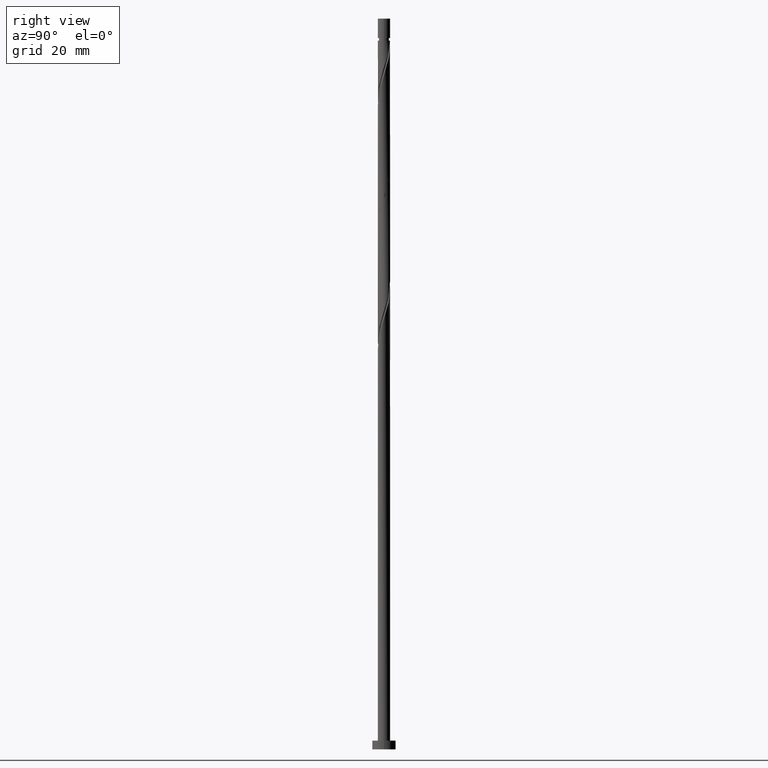
[diagram: clean part render]
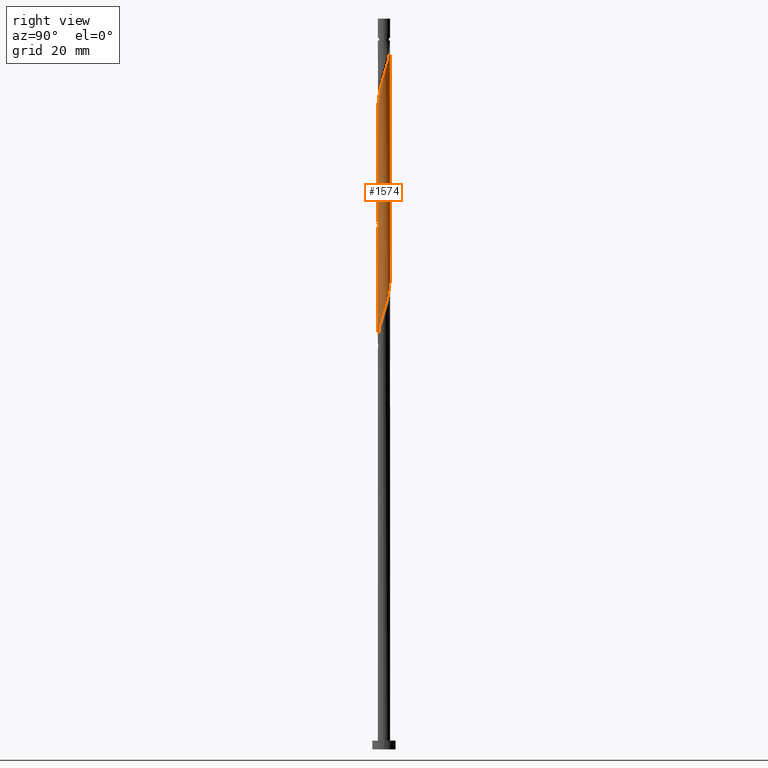
[diagram: same view with one face highlighted and labeled with its STEP entity id]
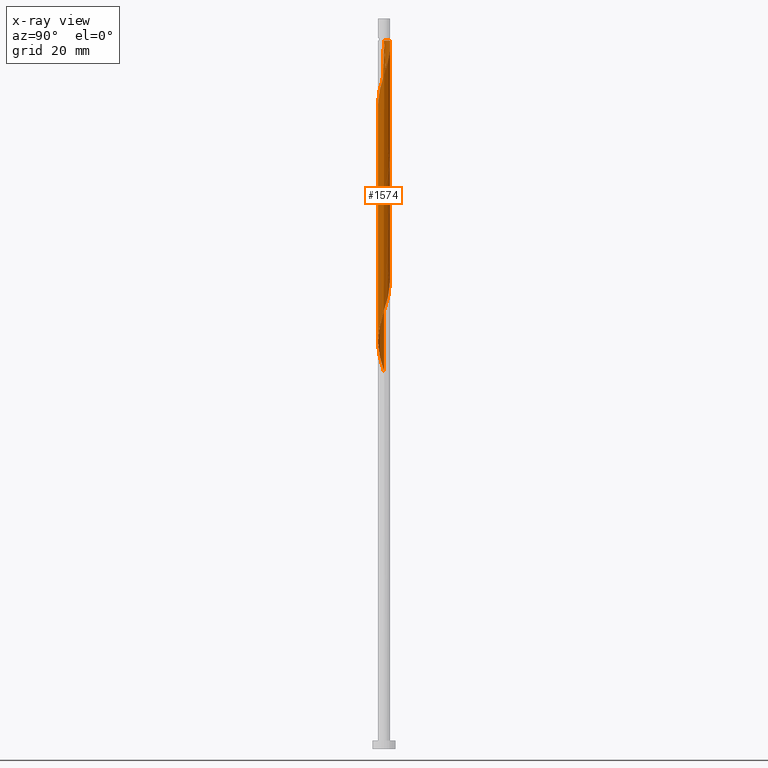
[diagram: x-ray of the same camera — body ghosted, the highlighted face saturated]
A machine part, right view. The second image highlights one B-rep face of the part: STEP entity #1574.
The next image is the same camera in x-ray: the body ghosted, the highlighted face saturated — about 0% of this face is hidden behind the body in this view.
In plain terms, the highlighted cylindrical surface (bore or boss wall) has radius 2.1 mm, axis along (-0, -0, -1).
Its self-contained STEP definition (entity closure, byte-faithful):
#2 = CARTESIAN_POINT ( 'NONE',  ( -2.100000000000000089, -0.1706385209277939408, 129.7641506767373016 ) ) ;
#4 = ORIENTED_EDGE ( 'NONE', *, *, #699, .T. ) ;
#22 = CARTESIAN_POINT ( 'NONE',  ( -2.099999999999982769, 0.000000000000000000, 242.4798613968304437 ) ) ;
#28 = CARTESIAN_POINT ( 'NONE',  ( 0.3415286315006276219, 2.087672421163765168, 240.0760152429842833 ) ) ;
#32 = CARTESIAN_POINT ( 'NONE',  ( 1.677505122866757459, 1.263319659767782044, 196.0055024224714941 ) ) ;
#39 = VECTOR ( 'NONE', #959, 1000.000000000000000 ) ;
#40 = CARTESIAN_POINT ( 'NONE',  ( 1.272598334446845447, 1.689825855934741883, 236.8708870378560789 ) ) ;
#43 = CARTESIAN_POINT ( 'NONE',  ( 0.8982630995139613272, 1.898189506885856526, 199.2106306275996985 ) ) ;
#47 = CARTESIAN_POINT ( 'NONE',  ( -2.100000000000003642, 2.392950165325814870E-16, 209.9019395209385834 ) ) ;
#54 = CARTESIAN_POINT ( 'NONE',  ( 2.100000000000000089, 2.452773919458978978E-15, 191.7244499393889896 ) ) ;
#59 = VERTEX_POINT ( 'NONE', #1179 ) ;
#72 = CARTESIAN_POINT ( 'NONE',  ( -1.051907738452355634, 1.817550579704468650, 163.9542203711893933 ) ) ;
#91 = CARTESIAN_POINT ( 'NONE',  ( 1.051907738452355190, -1.817550579704469094, 184.7875537045227929 ) ) ;
#98 = CARTESIAN_POINT ( 'NONE',  ( -2.031284211245808269, -0.5906796063569080824, 172.7683229352919909 ) ) ;
#115 = CARTESIAN_POINT ( 'NONE',  ( 1.524110344334081768, 1.467005658651766353, 155.1401178070868809 ) ) ;
#138 = DIRECTION ( 'NONE',  ( -1.000000000000000000, 0.000000000000000000, 0.000000000000000000 ) ) ;
#141 = CARTESIAN_POINT ( 'NONE',  ( 1.912131095443763806, -0.9048605517202564785, 147.1272972942663841 ) ) ;
#143 = LINE ( 'NONE', #948, #39 ) ;
#159 = CARTESIAN_POINT ( 'NONE',  ( -2.100000000000003197, -0.08352357370721440188, 210.1661104365715573 ) ) ;
#161 = CARTESIAN_POINT ( 'NONE',  ( -2.100000000000000089, 2.557465489191984118E-15, 129.2244499393889896 ) ) ;
#164 = EDGE_CURVE ( 'NONE', #714, #815, #1688, .T. ) ;
#172 = CARTESIAN_POINT ( 'NONE',  ( -1.992623220216672708, -0.6629122885068213789, 212.0311434481124877 ) ) ;
#180 = CARTESIAN_POINT ( 'NONE',  ( -2.100000000000003642, 2.392950165325814870E-16, 209.9019395209385834 ) ) ;
#188 = CARTESIAN_POINT ( 'NONE',  ( 2.073115344989578723, 0.4209640252933859461, 232.0631947301637581 ) ) ;
#201 = CARTESIAN_POINT ( 'NONE',  ( -0.8982630995139602170, -1.898189506885856970, 178.3772972942663273 ) ) ;
#224 = CARTESIAN_POINT ( 'NONE',  ( 1.912131095443763806, -0.9048605517202564785, 188.7939639609330413 ) ) ;
#233 = CARTESIAN_POINT ( 'NONE',  ( -0.6677811650561951140, -2.007258393884217451, 179.1785793455484566 ) ) ;
#244 = CARTESIAN_POINT ( 'NONE',  ( 1.456309535695668789, -1.512997863925082953, 144.7234511404201669 ) ) ;
#250 =( BOUNDED_CURVE ( )  B_SPLINE_CURVE ( 2, ( #47, #159, #1498, #460, #172, #1230, #964, #1113, #1365, #562, #1239, #1248, #571, #318, #1379, #717, #587, #817, #579, #682, #997, #433, #327, #1107, #1349, #1634, #1641, #292, #710, #188, #1488, #301, #449, #1120, #1480, #40, #1222, #980, #845, #28, #1372, #990, #828 ),
 .UNSPECIFIED., .F., .T. ) 
 B_SPLINE_CURVE_WITH_KNOTS ( ( 3, 2, 2, 2, 2, 2, 2, 2, 2, 2, 2, 2, 2, 2, 2, 2, 2, 2, 2, 2, 2, 3 ),
 ( 0.5545271625973833274, 0.5576923076923077094, 0.5673076923076922906, 0.5769230769230768718, 0.5865384615384615641, 0.5961538461538461453, 0.6057692307692308376, 0.6153846153846154188, 0.6250000000000000000, 0.6346153846153845812, 0.6442307692307691624, 0.6538461538461538547, 0.6634615384615384359, 0.6730769230769231282, 0.6826923076923077094, 0.6923076923076922906, 0.7019230769230768718, 0.7115384615384615641, 0.7211538461538461453, 0.7307692307692308376, 0.7403846153846154188, 0.7500000000000000000 ),
 .UNSPECIFIED. ) 
 CURVE ( )  GEOMETRIC_REPRESENTATION_ITEM ( )  RATIONAL_B_SPLINE_CURVE ( ( 0.9061636035683036106, 0.9069090390690923709, 0.9090909090909490287, 0.9024626128164523475, 0.9090909090909490287, 0.9024626128164523475, 0.9090909090909490287, 0.9024626128164523475, 0.9090909090909490287, 0.9024626128164523475, 0.9090909090909490287, 0.9024626128164523475, 0.9090909090909490287, 0.9024626128164523475, 0.9090909090909490287, 0.9024626128164523475, 0.9090909090909490287, 0.9024626128164523475, 0.9090909090909490287, 0.9024626128164523475, 0.9090909090909490287, 0.9024626128164523475, 0.9090909090909490287, 0.9024626128164523475, 0.9090909090909490287, 0.9024626128164523475, 0.9090909090909490287, 0.9024626128164523475, 0.9090909090909490287, 0.9024626128164523475, 0.9090909090909490287, 0.9024626128164523475, 0.9090909090909490287, 0.9024626128164523475, 0.9090909090909490287, 0.9024626128164523475, 0.9090909090909490287, 0.9024626128164523475, 0.9090909090909490287, 0.9024626128164523475, 0.9090909090909490287, 0.9024626128164523475, 0.9090909090909490287 ) ) 
 REPRESENTATION_ITEM ( '' )  );
#261 = CARTESIAN_POINT ( 'NONE',  ( 0.5863728869792477205, -2.016473862318979737, 141.5183229352919909 ) ) ;
#269 = CYLINDRICAL_SURFACE ( 'NONE', #621, 2.100000000000000089 ) ;
#276 = DIRECTION ( 'NONE',  ( -0.000000000000000000, -0.000000000000000000, -1.000000000000000000 ) ) ;
#278 = CARTESIAN_POINT ( 'NONE',  ( 2.100000000000000089, 2.452773919458978978E-15, 191.7244499393889896 ) ) ;
#292 = CARTESIAN_POINT ( 'NONE',  ( 2.113617666152269425, -0.08739740014156348324, 230.4606306275996417 ) ) ;
#295 = CARTESIAN_POINT ( 'NONE',  ( -1.456309535695668789, 1.512997863925082953, 207.2234511404201385 ) ) ;
#301 = CARTESIAN_POINT ( 'NONE',  ( 1.912131095443767137, 0.9048605517202568116, 233.6657588327278461 ) ) ;
#312 = CARTESIAN_POINT ( 'NONE',  ( 2.031284211245808269, 0.5906796063569068611, 193.6016562686253906 ) ) ;
#318 = CARTESIAN_POINT ( 'NONE',  ( -0.3415286315006273998, -2.087672421163765168, 219.2426819096509973 ) ) ;
#327 = CARTESIAN_POINT ( 'NONE',  ( 1.677505122866759013, -1.263319659767785819, 226.4542203711894217 ) ) ;
#338 = CARTESIAN_POINT ( 'NONE',  ( -1.776075916194129967, 1.120515211817841639, 167.1593485763176261 ) ) ;
#346 = CARTESIAN_POINT ( 'NONE',  ( -0.5863728869792478315, 2.016473862318979737, 162.3516562686253906 ) ) ;
#352 = CARTESIAN_POINT ( 'NONE',  ( -1.931092056322620154, -0.8251566336203537411, 173.5696049865740065 ) ) ;
#359 = CARTESIAN_POINT ( 'NONE',  ( 1.456309535695668789, -1.512997863925082953, 186.3901178070868241 ) ) ;
#367 = CARTESIAN_POINT ( 'NONE',  ( 1.640020736944495905, -1.336169871915426466, 145.5247331917022393 ) ) ;
#379 = CARTESIAN_POINT ( 'NONE',  ( 0.4178947235847823571, 2.057999999999999385, 159.1465280634970725 ) ) ;
#387 = CARTESIAN_POINT ( 'NONE',  ( -2.072450938699037071, -0.3390385032492350126, 130.3003742173432897 ) ) ;
#396 = CARTESIAN_POINT ( 'NONE',  ( -0.1680082821133701276, -2.108741606115783096, 139.1144767814458589 ) ) ;
#408 = CARTESIAN_POINT ( 'NONE',  ( -1.128745033971725764, -1.789120619887497821, 135.9093485763176830 ) ) ;
#410 = CARTESIAN_POINT ( 'NONE',  ( 0.1680082821133697668, 2.108741606115783096, 201.6144767814458589 ) ) ;
#419 = CARTESIAN_POINT ( 'NONE',  ( 0.6677811650561953360, 2.007258393884217007, 200.0119126788817709 ) ) ;
#430 = ORIENTED_EDGE ( 'NONE', *, *, #1063, .F. ) ;
#433 = CARTESIAN_POINT ( 'NONE',  ( 1.524110344334083322, -1.467005658651769684, 225.6529383199074061 ) ) ;
#444 = CARTESIAN_POINT ( 'NONE',  ( 1.524110344334081768, 1.467005658651766353, 196.8067844737535381 ) ) ;
#449 = CARTESIAN_POINT ( 'NONE',  ( 1.776075916194133297, 1.120515211817842527, 234.4670408840099753 ) ) ;
#460 = CARTESIAN_POINT ( 'NONE',  ( -2.073115344989578723, -0.4209640252933863347, 211.2298613968304437 ) ) ;
#470 = CARTESIAN_POINT ( 'NONE',  ( -1.912131095443763806, 0.9048605517202564785, 167.9606306275997269 ) ) ;
#480 = CARTESIAN_POINT ( 'NONE',  ( 2.093366505570920300, -0.1667833125759130564, 191.1978101147790881 ) ) ;
#517 = DIRECTION ( 'NONE',  ( -0.000000000000000000, -0.000000000000000000, -1.000000000000000000 ) ) ;
#523 = CARTESIAN_POINT ( 'NONE',  ( 0.08676017469362733159, -2.098207013639771912, 139.9157588327278461 ) ) ;
#529 = DIRECTION ( 'NONE',  ( -0.000000000000000000, -0.000000000000000000, -1.000000000000000000 ) ) ;
#532 = CARTESIAN_POINT ( 'NONE',  ( 2.031284211245808269, 0.5906796063569068611, 151.9349896019587050 ) ) ;
#534 = CARTESIAN_POINT ( 'NONE',  ( -2.100000000000000089, 0.000000000000000000, 250.0000000000000000 ) ) ;
#540 = CARTESIAN_POINT ( 'NONE',  ( 0.6677811650561953360, 2.007258393884217007, 158.3452460122150853 ) ) ;
#542 = CARTESIAN_POINT ( 'NONE',  ( -0.08676017469362798384, 2.098207013639771912, 202.4157588327279029 ) ) ;
#549 = CARTESIAN_POINT ( 'NONE',  ( -1.640020736944497015, 1.336169871915425800, 208.0247331917022962 ) ) ;
#556 = CARTESIAN_POINT ( 'NONE',  ( -1.776075916194129967, 1.120515211817841639, 208.8260152429842549 ) ) ;
#562 = CARTESIAN_POINT ( 'NONE',  ( -1.272598334446845003, -1.689825855934742771, 216.0375537045227645 ) ) ;
#571 = CARTESIAN_POINT ( 'NONE',  ( -0.5863728869792493859, -2.016473862318982402, 218.4413998583688681 ) ) ;
#579 = CARTESIAN_POINT ( 'NONE',  ( 0.8982630995139601060, -1.898189506885860744, 223.2490921660611605 ) ) ;
#587 = CARTESIAN_POINT ( 'NONE',  ( 0.4178947235847819131, -2.058000000000003382, 221.6465280634971009 ) ) ;
#592 = EDGE_LOOP ( 'NONE', ( #1530, #765, #1228, #4, #1104, #430, #1087, #1632 ) ) ;
#599 = CARTESIAN_POINT ( 'NONE',  ( -2.093366505570919855, 0.1667833125759118351, 170.3644767814458021 ) ) ;
#607 = CARTESIAN_POINT ( 'NONE',  ( -0.8312171424578699286, 1.945275303474196971, 163.1529383199073777 ) ) ;
#621 = AXIS2_PLACEMENT_3D ( 'NONE', #1317, #276, #798 ) ;
#630 = CARTESIAN_POINT ( 'NONE',  ( -0.4178947235847821906, -2.057999999999999385, 179.9798613968304153 ) ) ;
#646 = CARTESIAN_POINT ( 'NONE',  ( -1.524110344334081546, -1.467005658651766353, 134.3067844737535950 ) ) ;
#667 = CARTESIAN_POINT ( 'NONE',  ( 0.1680082821133697668, 2.108741606115783096, 159.9478101147791733 ) ) ;
#669 = CARTESIAN_POINT ( 'NONE',  ( 1.326427689152904099, 1.628063139269631199, 197.6080665250355253 ) ) ;
#682 = CARTESIAN_POINT ( 'NONE',  ( 1.128745033971726430, -1.789120619887501373, 224.0503742173433466 ) ) ;
#686 = CARTESIAN_POINT ( 'NONE',  ( -2.100000000000000089, 0.08352357370720982221, 212.2936123570894154 ) ) ;
#694 = CARTESIAN_POINT ( 'NONE',  ( -1.051907738452355634, 1.817550579704468650, 205.6208870378560505 ) ) ;
#699 = EDGE_CURVE ( 'NONE', #1218, #1206, #143, .T. ) ;
#703 = CARTESIAN_POINT ( 'NONE',  ( -2.073115344989575171, 0.4209640252933861682, 211.2298613968304437 ) ) ;
#710 = CARTESIAN_POINT ( 'NONE',  ( 2.093366505570923852, 0.1667833125759103363, 231.2619126788816857 ) ) ;
#714 = VERTEX_POINT ( 'NONE', #22 ) ;
#717 = CARTESIAN_POINT ( 'NONE',  ( 0.1680082821133687399, -2.108741606115785761, 220.8452460122150853 ) ) ;
#718 = VECTOR ( 'NONE', #517, 1000.000000000000000 ) ;
#721 = CARTESIAN_POINT ( 'NONE',  ( 2.073115344989575171, -0.4209640252933863902, 190.3965280634971577 ) ) ;
#725 = DIRECTION ( 'NONE',  ( -0.000000000000000000, -0.000000000000000000, -1.000000000000000000 ) ) ;
#729 = CARTESIAN_POINT ( 'NONE',  ( 2.100000000000000089, 2.452773919458978978E-15, 191.7244499393889896 ) ) ;
#753 = CARTESIAN_POINT ( 'NONE',  ( -1.326427689152903433, -1.628063139269632309, 176.7747331917022109 ) ) ;
#763 = CARTESIAN_POINT ( 'NONE',  ( 0.3415286315006250684, -2.087672421163762948, 140.7170408840099469 ) ) ;
#765 = ORIENTED_EDGE ( 'NONE', *, *, #854, .T. ) ;
#780 = VECTOR ( 'NONE', #725, 1000.000000000000000 ) ;
#781 = CARTESIAN_POINT ( 'NONE',  ( -0.4178947235847821906, -2.057999999999999385, 138.3131947301637297 ) ) ;
#798 = DIRECTION ( 'NONE',  ( -1.000000000000000000, 0.000000000000000000, 0.000000000000000000 ) ) ;
#800 = CARTESIAN_POINT ( 'NONE',  ( -2.100000000000000089, 6.057155105981014497E-16, 212.5577832727223608 ) ) ;
#808 = EDGE_CURVE ( 'NONE', #815, #1236, #1651, .T. ) ;
#811 = CARTESIAN_POINT ( 'NONE',  ( -0.8312171424578699286, 1.945275303474196971, 204.8196049865740349 ) ) ;
#815 = VERTEX_POINT ( 'NONE', #800 ) ;
#817 = CARTESIAN_POINT ( 'NONE',  ( 0.6677811650561942258, -2.007258393884221004, 222.4478101147791449 ) ) ;
#828 = CARTESIAN_POINT ( 'NONE',  ( -0.4178947235848336494, 2.058000000000665519, 242.4798613968303584 ) ) ;
#830 = CARTESIAN_POINT ( 'NONE',  ( -1.912131095443763806, 0.9048605517202564785, 209.6272972942663841 ) ) ;
#845 = CARTESIAN_POINT ( 'NONE',  ( 0.5863728869792507181, 2.016473862318982402, 239.2747331917022677 ) ) ;
#854 = EDGE_CURVE ( 'NONE', #714, #985, #1038, .T. ) ;
#857 = CARTESIAN_POINT ( 'NONE',  ( 0.3415286315006250684, -2.087672421163762948, 182.3837075506766610 ) ) ;
#864 = CARTESIAN_POINT ( 'NONE',  ( -1.456309535695668789, 1.512997863925082953, 165.5567844737534813 ) ) ;
#880 = CARTESIAN_POINT ( 'NONE',  ( -1.640020736944497015, 1.336169871915425800, 166.3580665250355821 ) ) ;
#902 = CARTESIAN_POINT ( 'NONE',  ( -1.326427689152903433, -1.628063139269632309, 135.1080665250356105 ) ) ;
#911 = CARTESIAN_POINT ( 'NONE',  ( 1.931092056322620598, 0.8251566336203532970, 152.7362716532406637 ) ) ;
#919 = CARTESIAN_POINT ( 'NONE',  ( 1.830899901399433594, 1.059633660883798179, 153.5375537045227929 ) ) ;
#928 = CARTESIAN_POINT ( 'NONE',  ( 2.072450938699037071, 0.3390385032492352346, 151.1337075506766041 ) ) ;
#938 = CARTESIAN_POINT ( 'NONE',  ( 0.8982630995139613272, 1.898189506885856526, 157.5439639609329845 ) ) ;
#940 = CARTESIAN_POINT ( 'NONE',  ( 2.072450938699037071, 0.3390385032492352346, 192.8003742173432613 ) ) ;
#948 = CARTESIAN_POINT ( 'NONE',  ( -2.100000000000000089, 0.000000000000000000, 250.0000000000000000 ) ) ;
#959 = DIRECTION ( 'NONE',  ( -0.000000000000000000, -0.000000000000000000, -1.000000000000000000 ) ) ;
#964 = CARTESIAN_POINT ( 'NONE',  ( -1.776075916194133297, -1.120515211817842305, 213.6337075506766041 ) ) ;
#980 = CARTESIAN_POINT ( 'NONE',  ( 0.8312171424578718160, 1.945275303474199635, 238.4734511404202522 ) ) ;
#985 = VERTEX_POINT ( 'NONE', #1147 ) ;
#990 = CARTESIAN_POINT ( 'NONE',  ( -0.1680082821133684623, 2.108741606115786205, 241.6785793455483997 ) ) ;
#992 = CARTESIAN_POINT ( 'NONE',  ( 0.8312171424578697065, -1.945275303474197637, 183.9862716532407489 ) ) ;
#997 = CARTESIAN_POINT ( 'NONE',  ( 1.326427689152904987, -1.628063139269634751, 224.8516562686253621 ) ) ;
#999 = CARTESIAN_POINT ( 'NONE',  ( -0.1680082821133701276, -2.108741606115783096, 180.7811434481125161 ) ) ;
#1007 = CARTESIAN_POINT ( 'NONE',  ( 1.992623220216668933, -0.6629122885068222670, 189.5952460122150285 ) ) ;
#1038 = CIRCLE ( 'NONE', #1392, 2.099999999999982769 ) ;
#1048 = CARTESIAN_POINT ( 'NONE',  ( -0.6677811650561951140, -2.007258393884217451, 137.5119126788817709 ) ) ;
#1056 = CARTESIAN_POINT ( 'NONE',  ( -1.677505122866757237, -1.263319659767782044, 133.5055024224714657 ) ) ;
#1062 = CARTESIAN_POINT ( 'NONE',  ( 0.8312171424578697065, -1.945275303474197637, 142.3196049865740918 ) ) ;
#1063 = EDGE_CURVE ( 'NONE', #59, #1236, #1386, .T. ) ;
#1065 = CARTESIAN_POINT ( 'NONE',  ( -2.100000000000000089, 6.057155105981014497E-16, 212.5577832727223608 ) ) ;
#1083 = CARTESIAN_POINT ( 'NONE',  ( 1.931092056322620598, 0.8251566336203532970, 194.4029383199073493 ) ) ;
#1087 = ORIENTED_EDGE ( 'NONE', *, *, #1063, .T. ) ;
#1101 = CARTESIAN_POINT ( 'NONE',  ( 1.128745033971725764, 1.789120619887497821, 198.4093485763176545 ) ) ;
#1104 = ORIENTED_EDGE ( 'NONE', *, *, #1548, .F. ) ;
#1107 = CARTESIAN_POINT ( 'NONE',  ( 1.830899901399434926, -1.059633660883802397, 227.2555024224714373 ) ) ;
#1113 = CARTESIAN_POINT ( 'NONE',  ( -1.640020736944499458, -1.336169871915427354, 214.4349896019587334 ) ) ;
#1120 = CARTESIAN_POINT ( 'NONE',  ( 1.640020736944500124, 1.336169871915426244, 235.2683229352919625 ) ) ;
#1123 = CARTESIAN_POINT ( 'NONE',  ( -2.073115344989575171, 0.4209640252933861682, 169.5631947301637865 ) ) ;
#1139 = CARTESIAN_POINT ( 'NONE',  ( -1.677505122866757237, -1.263319659767782044, 175.1721690891380945 ) ) ;
#1147 = CARTESIAN_POINT ( 'NONE',  ( -0.4178947235848336494, 2.058000000000665519, 242.4798613968303584 ) ) ;
#1179 = CARTESIAN_POINT ( 'NONE',  ( 2.100000000000000089, 2.571758278209441957E-16, 242.4798613968304437 ) ) ;
#1183 = CARTESIAN_POINT ( 'NONE',  ( -0.08676017469362798384, 2.098207013639771912, 160.7490921660611889 ) ) ;
#1190 = CARTESIAN_POINT ( 'NONE',  ( -1.830899901399433150, -1.059633660883799067, 132.7042203711894217 ) ) ;
#1206 = VERTEX_POINT ( 'NONE', #161 ) ;
#1218 = VERTEX_POINT ( 'NONE', #180 ) ;
#1222 = CARTESIAN_POINT ( 'NONE',  ( 1.051907738452358521, 1.817550579704470870, 237.6721690891381229 ) ) ;
#1225 = CARTESIAN_POINT ( 'NONE',  ( 0.4178947235847823571, 2.057999999999999385, 200.8131947301637581 ) ) ;
#1228 = ORIENTED_EDGE ( 'NONE', *, *, #1322, .F. ) ;
#1230 = CARTESIAN_POINT ( 'NONE',  ( -1.912131095443766693, -0.9048605517202575887, 212.8324254993945885 ) ) ;
#1233 = CARTESIAN_POINT ( 'NONE',  ( -0.5863728869792478315, 2.016473862318979737, 204.0183229352919625 ) ) ;
#1236 = VERTEX_POINT ( 'NONE', #54 ) ;
#1239 = CARTESIAN_POINT ( 'NONE',  ( -1.051907738452358299, -1.817550579704471092, 216.8388357558048085 ) ) ;
#1241 = CARTESIAN_POINT ( 'NONE',  ( -1.272598334446841450, 1.689825855934741217, 206.4221690891381513 ) ) ;
#1248 = CARTESIAN_POINT ( 'NONE',  ( -0.8312171424578715939, -1.945275303474199635, 217.6401178070869094 ) ) ;
#1266 = CARTESIAN_POINT ( 'NONE',  ( 1.776075916194129967, -1.120515211817841639, 187.9926819096509973 ) ) ;
#1277 = CARTESIAN_POINT ( 'NONE',  ( 0.5863728869792477205, -2.016473862318979737, 183.1849896019586197 ) ) ;
#1284 = CARTESIAN_POINT ( 'NONE',  ( 2.100000000000000977, -0.08352357370720452090, 191.4602790237560725 ) ) ;
#1291 = CARTESIAN_POINT ( 'NONE',  ( -1.524110344334081546, -1.467005658651766353, 175.9734511404201669 ) ) ;
#1302 = CARTESIAN_POINT ( 'NONE',  ( -1.931092056322620154, -0.8251566336203537411, 131.9029383199073777 ) ) ;
#1310 = CARTESIAN_POINT ( 'NONE',  ( 1.051907738452355190, -1.817550579704469094, 143.1208870378560221 ) ) ;
#1317 = CARTESIAN_POINT ( 'NONE',  ( 0.000000000000000000, 0.000000000000000000, 250.0000000000000000 ) ) ;
#1322 = EDGE_CURVE ( 'NONE', #1218, #985, #250, .T. ) ;
#1324 = CARTESIAN_POINT ( 'NONE',  ( 1.326427689152904099, 1.628063139269631199, 155.9413998583689249 ) ) ;
#1331 = CARTESIAN_POINT ( 'NONE',  ( 1.992623220216668933, -0.6629122885068222670, 147.9285793455484566 ) ) ;
#1333 = CARTESIAN_POINT ( 'NONE',  ( 1.830899901399433594, 1.059633660883798179, 195.2042203711894501 ) ) ;
#1349 = CARTESIAN_POINT ( 'NONE',  ( 1.931092056322622819, -0.8251566336203557395, 228.0567844737535097 ) ) ;
#1359 = CARTESIAN_POINT ( 'NONE',  ( -2.093366505570919855, 0.1667833125759118351, 212.0311434481125161 ) ) ;
#1365 = CARTESIAN_POINT ( 'NONE',  ( -1.456309535695672119, -1.512997863925085396, 215.2362716532407489 ) ) ;
#1372 = CARTESIAN_POINT ( 'NONE',  ( 0.08676017469363052348, 2.098207013639775909, 240.8772972942663841 ) ) ;
#1379 = CARTESIAN_POINT ( 'NONE',  ( -0.08676017469362930223, -2.098207013639776353, 220.0439639609330413 ) ) ;
#1381 = CARTESIAN_POINT ( 'NONE',  ( -2.072450938699037071, -0.3390385032492350126, 171.9670408840099469 ) ) ;
#1386 = LINE ( 'NONE', #1659, #780 ) ;
#1389 = CARTESIAN_POINT ( 'NONE',  ( -1.272598334446841450, 1.689825855934741217, 164.7555024224714657 ) ) ;
#1392 = AXIS2_PLACEMENT_3D ( 'NONE', #1589, #529, #138 ) ;
#1413 = CARTESIAN_POINT ( 'NONE',  ( 1.272598334446841006, -1.689825855934741439, 185.5888357558048369 ) ) ;
#1422 = CARTESIAN_POINT ( 'NONE',  ( 1.272598334446841006, -1.689825855934741439, 143.9221690891381513 ) ) ;
#1436 = CARTESIAN_POINT ( 'NONE',  ( 1.776075916194129967, -1.120515211817841639, 146.3260152429842833 ) ) ;
#1446 = CARTESIAN_POINT ( 'NONE',  ( 1.128745033971725764, 1.789120619887497821, 156.7426819096509689 ) ) ;
#1454 = CARTESIAN_POINT ( 'NONE',  ( -2.100000000000000089, 2.557465489191984118E-15, 129.2244499393889896 ) ) ;
#1456 = CARTESIAN_POINT ( 'NONE',  ( 2.099999999999998312, 0.1706385209278050707, 192.2641506767373585 ) ) ;
#1480 = CARTESIAN_POINT ( 'NONE',  ( 1.456309535695672341, 1.512997863925085174, 236.0696049865739781 ) ) ;
#1483 = CARTESIAN_POINT ( 'NONE',  ( -1.992623220216668933, 0.6629122885068214899, 210.4285793455483713 ) ) ;
#1488 = CARTESIAN_POINT ( 'NONE',  ( 1.992623220216673152, 0.6629122885068204907, 232.8644767814458021 ) ) ;
#1498 = CARTESIAN_POINT ( 'NONE',  ( -2.093366505570923852, -0.1667833125759110302, 210.4285793455484566 ) ) ;
#1512 = CARTESIAN_POINT ( 'NONE',  ( 0.08676017469362733159, -2.098207013639771912, 181.5824254993945317 ) ) ;
#1520 = CARTESIAN_POINT ( 'NONE',  ( -2.113617666152265873, -0.08739740014156288650, 171.1657588327278745 ) ) ;
#1530 = ORIENTED_EDGE ( 'NONE', *, *, #164, .F. ) ;
#1536 = CARTESIAN_POINT ( 'NONE',  ( 1.640020736944495905, -1.336169871915426466, 187.1913998583689533 ) ) ;
#1548 = EDGE_CURVE ( 'NONE', #1236, #1206, #1719, .T. ) ;
#1556 = CARTESIAN_POINT ( 'NONE',  ( 1.677505122866757459, 1.263319659767782044, 154.3388357558047801 ) ) ;
#1565 = CARTESIAN_POINT ( 'NONE',  ( -2.031284211245808269, -0.5906796063569080824, 131.1016562686253621 ) ) ;
#1574 = ADVANCED_FACE ( 'NONE', ( #1584 ), #269, .T. ) ;
#1577 = CARTESIAN_POINT ( 'NONE',  ( -0.8982630995139602170, -1.898189506885856970, 136.7106306275996701 ) ) ;
#1584 = FACE_OUTER_BOUND ( 'NONE', #592, .T. ) ;
#1589 = CARTESIAN_POINT ( 'NONE',  ( 0.000000000000000000, 0.000000000000000000, 242.4798613968304437 ) ) ;
#1592 = CARTESIAN_POINT ( 'NONE',  ( 2.113617666152265873, 0.08739740014156209547, 150.3324254993945317 ) ) ;
#1600 = CARTESIAN_POINT ( 'NONE',  ( -0.3415286315006256235, 2.087672421163763392, 203.2170408840099469 ) ) ;
#1632 = ORIENTED_EDGE ( 'NONE', *, *, #808, .F. ) ;
#1634 = CARTESIAN_POINT ( 'NONE',  ( 2.031284211245810489, -0.5906796063569107469, 228.8580665250355537 ) ) ;
#1641 = CARTESIAN_POINT ( 'NONE',  ( 2.072450938699039735, -0.3390385032492370665, 229.6593485763176261 ) ) ;
#1651 =( BOUNDED_CURVE ( )  B_SPLINE_CURVE ( 2, ( #1065, #686, #1359, #703, #1483, #830, #556, #549, #295, #1241, #694, #811, #1233, #1600, #542, #410, #1225, #419, #43, #1101, #669, #444, #32, #1333, #1083, #312, #940, #1456, #278 ),
 .UNSPECIFIED., .F., .T. ) 
 B_SPLINE_CURVE_WITH_KNOTS ( ( 3, 2, 2, 2, 2, 2, 2, 2, 2, 2, 2, 2, 2, 2, 3 ),
 ( 0.4295271625973831053, 0.4326923076923077094, 0.4423076923076922906, 0.4519230769230769273, 0.4615384615384615641, 0.4711538461538461453, 0.4807692307692307820, 0.4903846153846153633, 0.5000000000000000000, 0.5096153846153845812, 0.5192307692307692735, 0.5288461538461538547, 0.5384615384615384359, 0.5480769230769231282, 0.5545271625973828833 ),
 .UNSPECIFIED. ) 
 CURVE ( )  GEOMETRIC_REPRESENTATION_ITEM ( )  RATIONAL_B_SPLINE_CURVE ( ( 0.9061636035682971713, 0.9069090390690857095, 0.9090909090909423673, 0.9024626128164456862, 0.9090909090909423673, 0.9024626128164456862, 0.9090909090909423673, 0.9024626128164456862, 0.9090909090909423673, 0.9024626128164456862, 0.9090909090909423673, 0.9024626128164456862, 0.9090909090909423673, 0.9024626128164456862, 0.9090909090909423673, 0.9024626128164456862, 0.9090909090909423673, 0.9024626128164456862, 0.9090909090909423673, 0.9024626128164456862, 0.9090909090909423673, 0.9024626128164456862, 0.9090909090909423673, 0.9024626128164456862, 0.9090909090909423673, 0.9024626128164456862, 0.9090909090909423673, 0.9046444828383025660, 0.9061636035682968382 ) ) 
 REPRESENTATION_ITEM ( '' )  );
#1655 = CARTESIAN_POINT ( 'NONE',  ( -1.992623220216668933, 0.6629122885068214899, 168.7619126788817141 ) ) ;
#1659 = CARTESIAN_POINT ( 'NONE',  ( 2.100000000000000089, 2.571758278209441957E-16, 250.0000000000000000 ) ) ;
#1662 = CARTESIAN_POINT ( 'NONE',  ( -1.128745033971725764, -1.789120619887497821, 177.5760152429843686 ) ) ;
#1678 = CARTESIAN_POINT ( 'NONE',  ( -1.830899901399433150, -1.059633660883799067, 174.3708870378560789 ) ) ;
#1688 = LINE ( 'NONE', #534, #718 ) ;
#1695 = CARTESIAN_POINT ( 'NONE',  ( 2.073115344989575171, -0.4209640252933863902, 148.7298613968304437 ) ) ;
#1705 = CARTESIAN_POINT ( 'NONE',  ( 2.093366505570920300, -0.1667833125759130564, 149.5311434481124309 ) ) ;
#1712 = CARTESIAN_POINT ( 'NONE',  ( -0.3415286315006256235, 2.087672421163763392, 161.5503742173432613 ) ) ;
#1719 =( BOUNDED_CURVE ( )  B_SPLINE_CURVE ( 2, ( #729, #1284, #480, #721, #1007, #224, #1266, #1536, #359, #1413, #91, #992, #1277, #857, #1512, #999, #630, #233, #201, #1662, #753, #1291, #1139, #1678, #352, #98, #1381, #1520, #599, #1123, #1655, #470, #338, #880, #864, #1389, #72, #607, #346, #1712, #1183, #667, #379, #540, #938, #1446, #1324, #115, #1556, #919, #911, #532, #928, #1592, #1705, #1695, #1331, #141, #1436, #367, #244, #1422, #1310, #1062, #261, #763, #523, #396, #781, #1048, #1577, #408, #902, #646, #1056, #1190, #1302, #1565, #387, #2, #1454 ),
 .UNSPECIFIED., .F., .T. ) 
 B_SPLINE_CURVE_WITH_KNOTS ( ( 3, 2, 2, 2, 2, 2, 2, 2, 2, 2, 2, 2, 2, 2, 2, 2, 2, 2, 2, 2, 2, 2, 2, 2, 2, 2, 2, 2, 2, 2, 2, 2, 2, 2, 2, 2, 2, 2, 2, 2, 3 ),
 ( 0.5545271625973828833, 0.5576923076923077094, 0.5673076923076922906, 0.5769230769230768718, 0.5865384615384615641, 0.5961538461538461453, 0.6057692307692307265, 0.6153846153846154188, 0.6250000000000000000, 0.6346153846153845812, 0.6442307692307692735, 0.6538461538461538547, 0.6634615384615384359, 0.6730769230769231282, 0.6826923076923077094, 0.6923076923076922906, 0.7019230769230768718, 0.7115384615384615641, 0.7211538461538461453, 0.7307692307692307265, 0.7403846153846154188, 0.7500000000000000000, 0.7596153846153845812, 0.7692307692307692735, 0.7788461538461538547, 0.7884615384615384359, 0.7980769230769231282, 0.8076923076923077094, 0.8173076923076922906, 0.8269230769230768718, 0.8365384615384615641, 0.8461538461538461453, 0.8557692307692307265, 0.8653846153846154188, 0.8750000000000000000, 0.8846153846153845812, 0.8942307692307692735, 0.9038461538461538547, 0.9134615384615384359, 0.9230769230769231282, 0.9295271625973833274 ),
 .UNSPECIFIED. ) 
 CURVE ( )  GEOMETRIC_REPRESENTATION_ITEM ( )  RATIONAL_B_SPLINE_CURVE ( ( 0.9061636035682968382, 0.9069090390690854875, 0.9090909090909423673, 0.9024626128164456862, 0.9090909090909423673, 0.9024626128164456862, 0.9090909090909423673, 0.9024626128164456862, 0.9090909090909423673, 0.9024626128164456862, 0.9090909090909423673, 0.9024626128164456862, 0.9090909090909423673, 0.9024626128164456862, 0.9090909090909423673, 0.9024626128164456862, 0.9090909090909423673, 0.9024626128164456862, 0.9090909090909423673, 0.9024626128164456862, 0.9090909090909423673, 0.9024626128164456862, 0.9090909090909423673, 0.9024626128164456862, 0.9090909090909423673, 0.9024626128164456862, 0.9090909090909423673, 0.9024626128164456862, 0.9090909090909423673, 0.9024626128164456862, 0.9090909090909423673, 0.9024626128164456862, 0.9090909090909423673, 0.9024626128164456862, 0.9090909090909423673, 0.9024626128164456862, 0.9090909090909423673, 0.9024626128164456862, 0.9090909090909423673, 0.9024626128164456862, 0.9090909090909423673, 0.9024626128164456862, 0.9090909090909423673, 0.9024626128164456862, 0.9090909090909423673, 0.9024626128164456862, 0.9090909090909423673, 0.9024626128164456862, 0.9090909090909423673, 0.9024626128164456862, 0.9090909090909423673, 0.9024626128164456862, 0.9090909090909423673, 0.9024626128164456862, 0.9090909090909423673, 0.9024626128164456862, 0.9090909090909423673, 0.9024626128164456862, 0.9090909090909423673, 0.9024626128164456862, 0.9090909090909423673, 0.9024626128164456862, 0.9090909090909423673, 0.9024626128164456862, 0.9090909090909423673, 0.9024626128164456862, 0.9090909090909423673, 0.9024626128164456862, 0.9090909090909423673, 0.9024626128164456862, 0.9090909090909423673, 0.9024626128164456862, 0.9090909090909423673, 0.9024626128164456862, 0.9090909090909423673, 0.9024626128164456862, 0.9090909090909423673, 0.9024626128164456862, 0.9090909090909423673, 0.9046444828383023440, 0.9061636035682970602 ) ) 
 REPRESENTATION_ITEM ( '' )  );